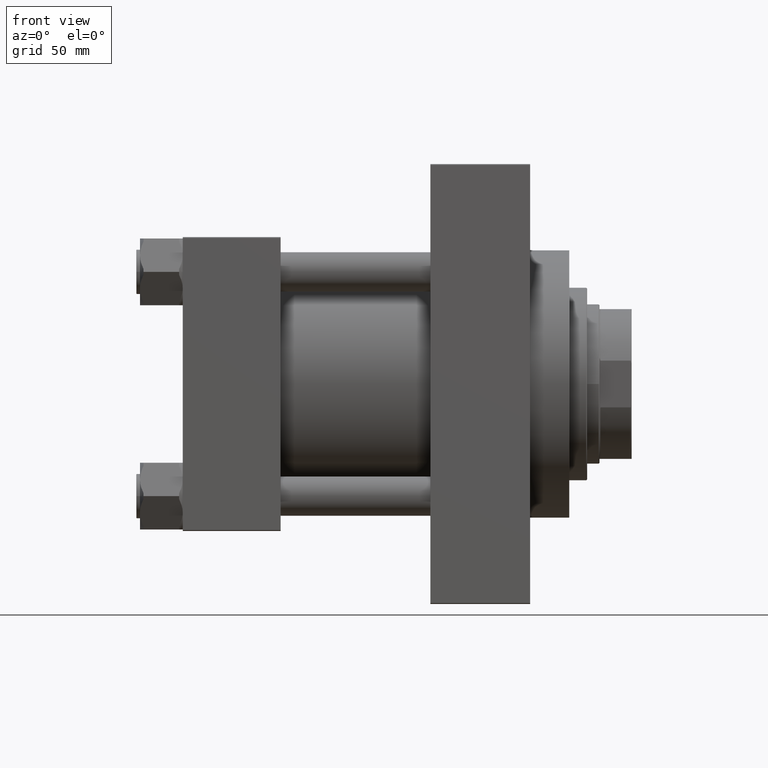
[diagram: clean part render]
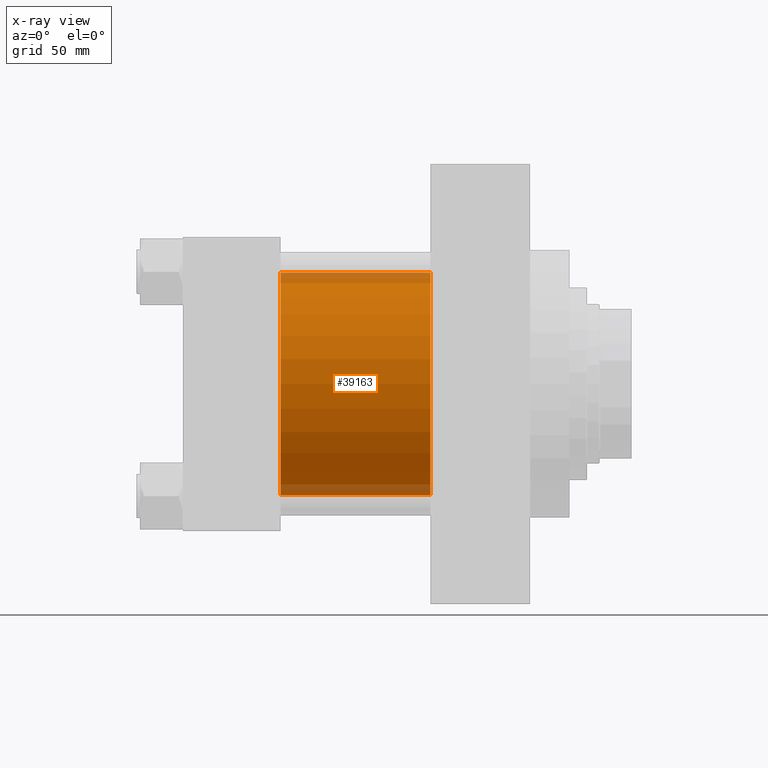
[diagram: x-ray — body ghosted, one internal face saturated and labeled with its STEP entity id]
A machine part, front view, then the same camera in x-ray: the body is ghosted and one INTERNAL B-rep face — a face not visible from any outside direction — is saturated and labeled: STEP entity #39163.
In plain terms, the highlighted cylindrical surface (partial cylindrical patch) has radius 62.5 mm, axis along (-1, -0, -0).
Its self-contained STEP definition (entity closure, byte-faithful):
#1170 = VERTEX_POINT ( 'NONE', #40651 ) ;
#1457 = ORIENTED_EDGE ( 'NONE', *, *, #24649, .F. ) ;
#3167 = AXIS2_PLACEMENT_3D ( 'NONE', #44724, #9998, #45218 ) ;
#4159 = VERTEX_POINT ( 'NONE', #23386 ) ;
#5341 = FACE_OUTER_BOUND ( 'NONE', #33595, .T. ) ;
#5461 = LINE ( 'NONE', #13083, #47662 ) ;
#6096 = DIRECTION ( 'NONE',  ( 0.000000000000000000, 0.000000000000000000, 1.000000000000000000 ) ) ;
#6313 = AXIS2_PLACEMENT_3D ( 'NONE', #18451, #33922, #11348 ) ;
#6357 = ORIENTED_EDGE ( 'NONE', *, *, #10248, .T. ) ;
#8744 = CIRCLE ( 'NONE', #6313, 62.50000000000000000 ) ;
#9394 = DIRECTION ( 'NONE',  ( -1.000000000000000000, -0.000000000000000000, -0.000000000000000000 ) ) ;
#9998 = DIRECTION ( 'NONE',  ( 1.000000000000000000, 0.000000000000000000, 0.000000000000000000 ) ) ;
#10248 = EDGE_CURVE ( 'NONE', #13653, #28056, #8744, .T. ) ;
#11348 = DIRECTION ( 'NONE',  ( 0.000000000000000000, 0.000000000000000000, -1.000000000000000000 ) ) ;
#13083 = CARTESIAN_POINT ( 'NONE',  ( 139.0000000000000000, 5.051957280705745584E-15, -62.50000000000000000 ) ) ;
#13653 = VERTEX_POINT ( 'NONE', #37598 ) ;
#15322 = DIRECTION ( 'NONE',  ( -1.000000000000000000, -0.000000000000000000, -0.000000000000000000 ) ) ;
#16079 = CARTESIAN_POINT ( 'NONE',  ( 139.0000000000000000, -2.602085213965210642E-15, 62.50000000000000000 ) ) ;
#16113 = EDGE_CURVE ( 'NONE', #1170, #4159, #45243, .T. ) ;
#18451 = CARTESIAN_POINT ( 'NONE',  ( 139.0000000000000000, -2.602085213965210642E-15, 0.000000000000000000 ) ) ;
#21555 = CYLINDRICAL_SURFACE ( 'NONE', #43340, 62.50000000000000000 ) ;
#21809 = CARTESIAN_POINT ( 'NONE',  ( 139.0000000000000000, -2.602085213965210642E-15, 0.000000000000000000 ) ) ;
#23386 = CARTESIAN_POINT ( 'NONE',  ( 55.00000000000000000, 5.051957280705745584E-15, -62.50000000000000000 ) ) ;
#24649 = EDGE_CURVE ( 'NONE', #13653, #1170, #30779, .T. ) ;
#28056 = VERTEX_POINT ( 'NONE', #31521 ) ;
#30779 = LINE ( 'NONE', #16079, #30993 ) ;
#30993 = VECTOR ( 'NONE', #15322, 1000.000000000000000 ) ;
#31521 = CARTESIAN_POINT ( 'NONE',  ( 139.0000000000000000, 5.051957280705745584E-15, -62.50000000000000000 ) ) ;
#33112 = ORIENTED_EDGE ( 'NONE', *, *, #16113, .F. ) ;
#33595 = EDGE_LOOP ( 'NONE', ( #6357, #49050, #33112, #1457 ) ) ;
#33922 = DIRECTION ( 'NONE',  ( 1.000000000000000000, 0.000000000000000000, 0.000000000000000000 ) ) ;
#37598 = CARTESIAN_POINT ( 'NONE',  ( 139.0000000000000000, -2.602085213965210642E-15, 62.50000000000000000 ) ) ;
#39163 = ADVANCED_FACE ( 'NONE', ( #5341 ), #21555, .F. ) ;
#40441 = DIRECTION ( 'NONE',  ( -1.000000000000000000, -0.000000000000000000, -0.000000000000000000 ) ) ;
#40651 = CARTESIAN_POINT ( 'NONE',  ( 55.00000000000000000, -2.602085213965210642E-15, 62.50000000000000000 ) ) ;
#43340 = AXIS2_PLACEMENT_3D ( 'NONE', #21809, #9394, #6096 ) ;
#44724 = CARTESIAN_POINT ( 'NONE',  ( 55.00000000000000000, -2.602085213965210642E-15, 0.000000000000000000 ) ) ;
#45218 = DIRECTION ( 'NONE',  ( 0.000000000000000000, 0.000000000000000000, -1.000000000000000000 ) ) ;
#45243 = CIRCLE ( 'NONE', #3167, 62.50000000000000000 ) ;
#47631 = EDGE_CURVE ( 'NONE', #28056, #4159, #5461, .T. ) ;
#47662 = VECTOR ( 'NONE', #40441, 1000.000000000000000 ) ;
#49050 = ORIENTED_EDGE ( 'NONE', *, *, #47631, .T. ) ;